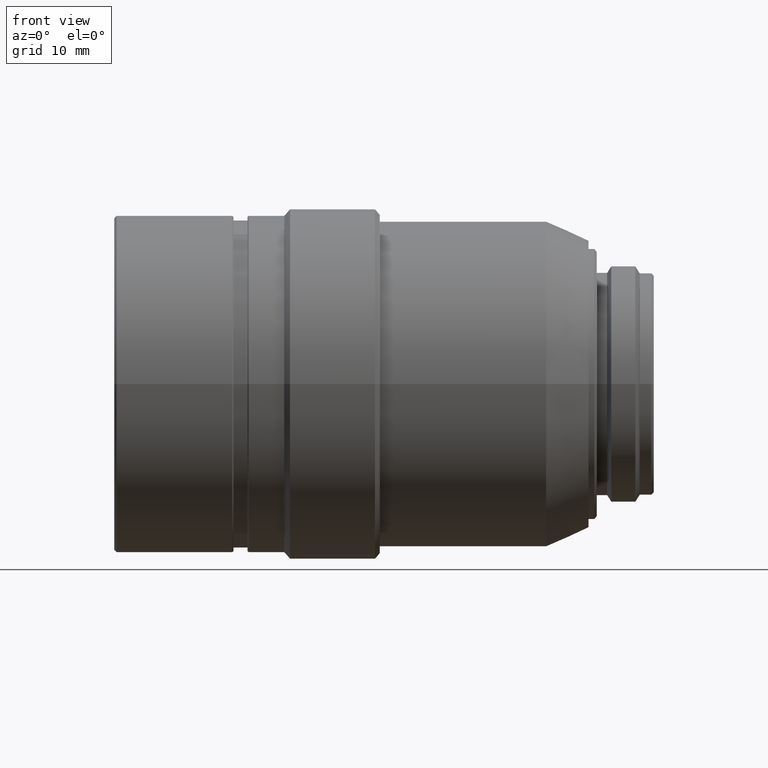
[diagram: clean part render]
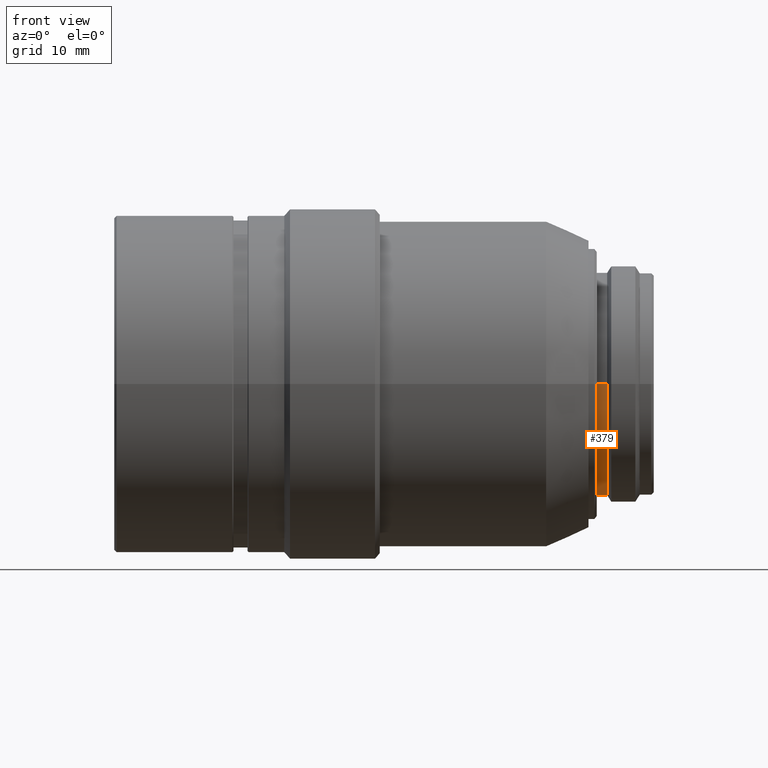
[diagram: same view with one face highlighted and labeled with its STEP entity id]
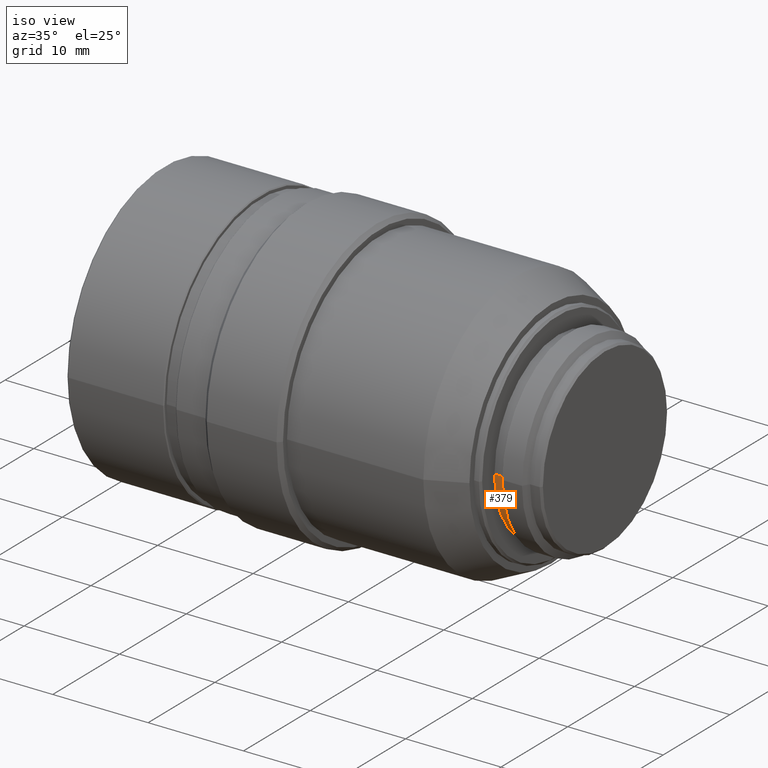
[diagram: same view with one face highlighted and labeled with its STEP entity id]
A machine part, front view. The second image highlights one B-rep face of the part: STEP entity #379.
A second angle (iso view) of the same face is appended — the face is thin or edge-on in the first view.
In plain terms, the highlighted cylindrical surface (partial cylindrical patch) has radius 9.55 mm, axis along (1, 0, 0).
Its self-contained STEP definition (entity closure, byte-faithful):
#1 = DIRECTION ( 'NONE',  ( 0.000000000000000000, -1.000000000000000000, 0.000000000000000000 ) ) ;
#3 = DIRECTION ( 'NONE',  ( 1.000000000000000000, -1.250955520704399823E-16, 0.000000000000000000 ) ) ;
#23 = CARTESIAN_POINT ( 'NONE',  ( 44.88961400000000168, 9.549999999999998934, 0.000000000000000000 ) ) ;
#153 = VECTOR ( 'NONE', #374, 1000.000000000000000 ) ;
#157 = DIRECTION ( 'NONE',  ( 1.000000000000000000, -1.250955520704399823E-16, 0.000000000000000000 ) ) ;
#161 = ORIENTED_EDGE ( 'NONE', *, *, #1422, .F. ) ;
#167 = EDGE_CURVE ( 'NONE', #1047, #853, #203, .T. ) ;
#203 = LINE ( 'NONE', #1110, #1380 ) ;
#219 = CIRCLE ( 'NONE', #346, 9.549999999999998934 ) ;
#253 = LINE ( 'NONE', #945, #153 ) ;
#309 = CARTESIAN_POINT ( 'NONE',  ( 45.33961399999999742, -2.875946742099419900E-15, 0.000000000000000000 ) ) ;
#344 = AXIS2_PLACEMENT_3D ( 'NONE', #1350, #771, #1213 ) ;
#346 = AXIS2_PLACEMENT_3D ( 'NONE', #557, #1016, #1 ) ;
#374 = DIRECTION ( 'NONE',  ( 1.000000000000000000, -1.250955520704399823E-16, 0.000000000000000000 ) ) ;
#379 = ADVANCED_FACE ( 'NONE', ( #494 ), #860, .T. ) ;
#405 = EDGE_CURVE ( 'NONE', #841, #1047, #1262, .T. ) ;
#427 = EDGE_LOOP ( 'NONE', ( #960, #1301, #161, #502 ) ) ;
#494 = FACE_OUTER_BOUND ( 'NONE', #427, .T. ) ;
#502 = ORIENTED_EDGE ( 'NONE', *, *, #526, .F. ) ;
#526 = EDGE_CURVE ( 'NONE', #841, #972, #253, .T. ) ;
#557 = CARTESIAN_POINT ( 'NONE',  ( 45.78961400000000026, -2.932239740531120073E-15, 0.000000000000000000 ) ) ;
#601 = CARTESIAN_POINT ( 'NONE',  ( 45.78961400000000026, 9.549999999999998934, 0.000000000000000000 ) ) ;
#694 = AXIS2_PLACEMENT_3D ( 'NONE', #309, #157, #1127 ) ;
#771 = DIRECTION ( 'NONE',  ( 1.000000000000000000, -1.250955520704399823E-16, 0.000000000000000000 ) ) ;
#841 = VERTEX_POINT ( 'NONE', #23 ) ;
#853 = VERTEX_POINT ( 'NONE', #1355 ) ;
#860 = CYLINDRICAL_SURFACE ( 'NONE', #694, 9.549999999999998934 ) ;
#945 = CARTESIAN_POINT ( 'NONE',  ( 45.33961399999999742, 9.549999999999998934, 0.000000000000000000 ) ) ;
#954 = CARTESIAN_POINT ( 'NONE',  ( 44.88961400000000168, -9.549999999999998934, 1.169537693185719994E-15 ) ) ;
#960 = ORIENTED_EDGE ( 'NONE', *, *, #405, .T. ) ;
#972 = VERTEX_POINT ( 'NONE', #601 ) ;
#1016 = DIRECTION ( 'NONE',  ( 1.000000000000000000, -1.250955520704399823E-16, 0.000000000000000000 ) ) ;
#1047 = VERTEX_POINT ( 'NONE', #954 ) ;
#1110 = CARTESIAN_POINT ( 'NONE',  ( 45.33961399999999742, -9.549999999999998934, 1.169537693185719994E-15 ) ) ;
#1127 = DIRECTION ( 'NONE',  ( 0.000000000000000000, 1.000000000000000000, 0.000000000000000000 ) ) ;
#1213 = DIRECTION ( 'NONE',  ( 0.000000000000000000, -1.000000000000000000, 0.000000000000000000 ) ) ;
#1262 = CIRCLE ( 'NONE', #344, 9.549999999999998934 ) ;
#1301 = ORIENTED_EDGE ( 'NONE', *, *, #167, .T. ) ;
#1350 = CARTESIAN_POINT ( 'NONE',  ( 44.88961400000000168, -2.819653743667719728E-15, 0.000000000000000000 ) ) ;
#1355 = CARTESIAN_POINT ( 'NONE',  ( 45.78961400000000026, -9.549999999999998934, 1.169537693185719994E-15 ) ) ;
#1380 = VECTOR ( 'NONE', #3, 1000.000000000000000 ) ;
#1422 = EDGE_CURVE ( 'NONE', #972, #853, #219, .T. ) ;